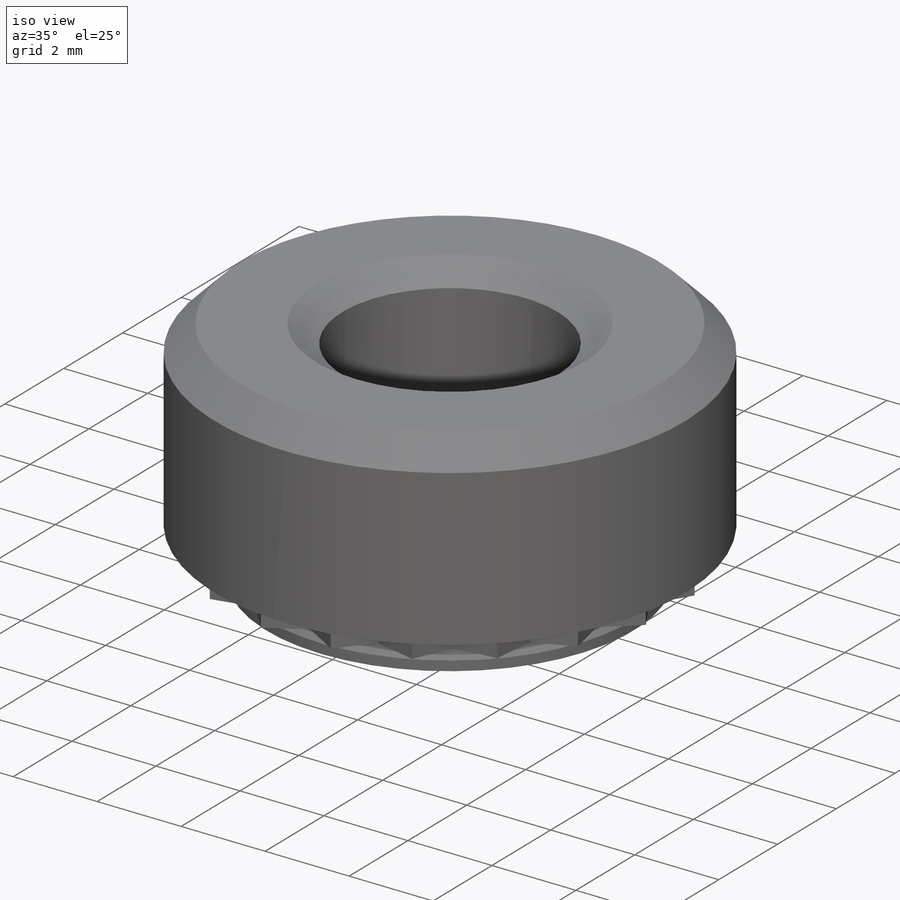
[diagram: iso view]
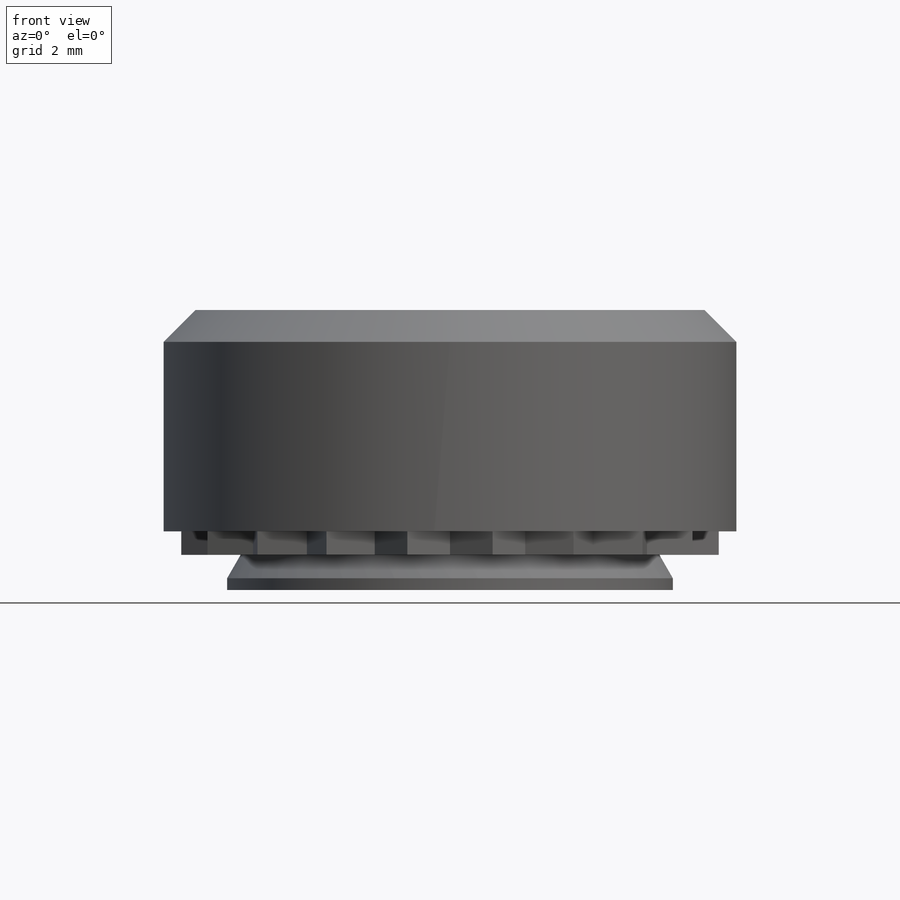
[diagram: front view]
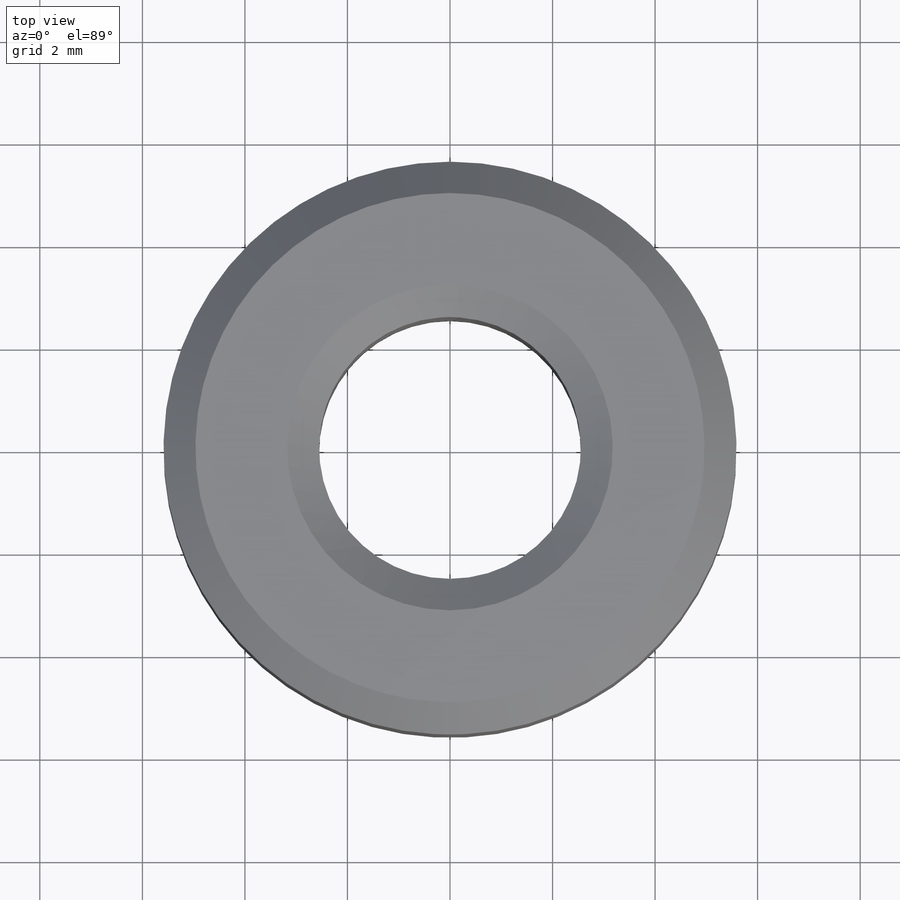
[diagram: top view]
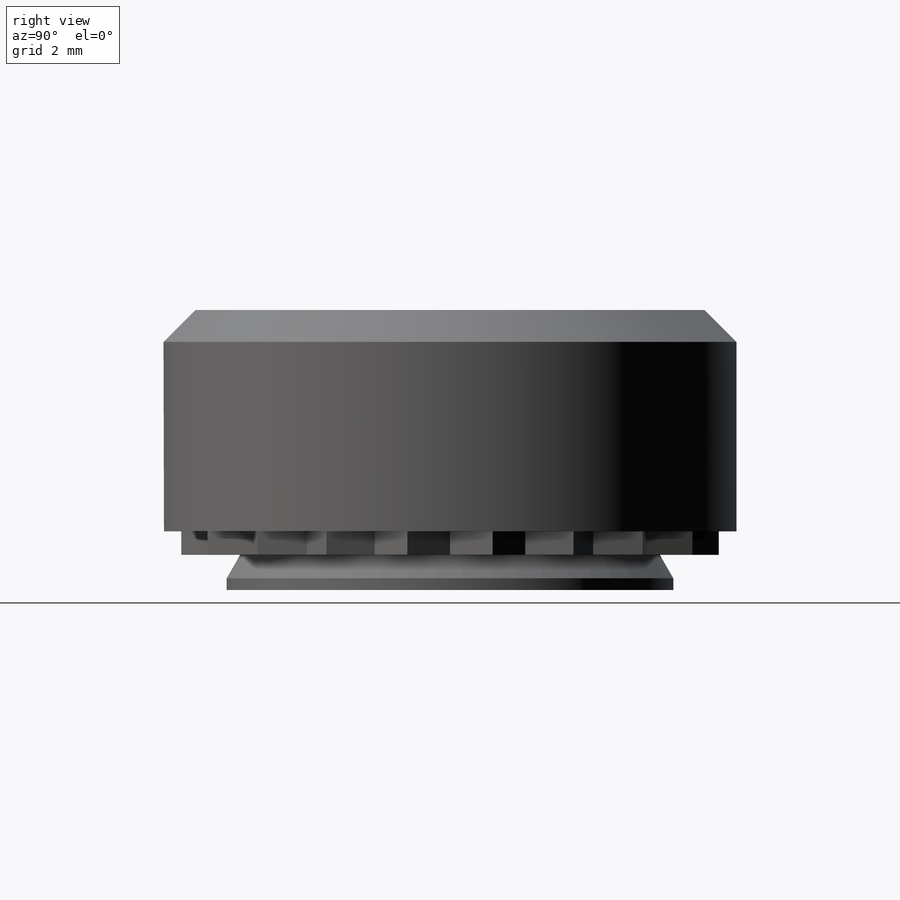
[diagram: right view]
SOLIDWORKS PART (.sldprt)
format: sldprt  version: not decoded by parser v0  size: 768,512 bytes
history: native  units: mm
features: cut_revolve x24, plane x4, sketch x4, revolve x2, thread x2, chamfer x2, material x1, pattern_linear x1, extrude x1, pattern_circular x1 (+9 scaffold rows collapsed)
feature tree (51):
  scaffold x9  (default folders/planes/origin — collapsed)
  material  "Material <not specified>"
  plane  "Plane1"
  plane  "Plane2"
  plane  "Plane3"
  sketch  "BodySke"  dims[c1.E_dia=7.112mm c1.C_dia=4.7498mm c1.A_ht=0.762mm c1.T_ht=1.778mm c1.Thread_min=2.7051mm c1.Clinch_dia=10.6172mm c1.Clinch_ht=~0.54864mm c1.C_len=0.1524mm c1.D3=~1.38811mm c1.Angle=~51.551076deg c1.Clinching_ht=0.3048mm c1.D2=~1.66751mm c2.D2=~51.551076deg c2.D1=60.0deg c2.Advance=~0.79248mm]
  revolve  "Body"  [1 undecoded]
  thread  "ThreadCosmetic"  [2 undecoded]
  cut_revolve  "EndChamfer"  [1 undecoded]
  sketch  "EndChamferSke"  dims[c1.Thread_nominal=3.5052mm c1.D1=0.254mm c1.D2=0.762mm c2.D2=34.99deg c2.Thread_min=2.7051mm c2.Inset=~0.00254mm c2.D1=360.0deg c2.Thread_nominal=3.5052mm c3.D1=360.0deg]
  chamfer  "Chamfer"  Distance=0.40005mm Angle=45deg Width=0.40005mm
  sketch  "CliRinSegSke"  dims[Crimp_od=10.6172mm D2=~6.486144mm D3=6.0452mm D4=~5.803392mm D5=10.6172mm D1=~0.212344mm Angle=18.0deg]
  plane  "Plane4"  Offset=0.54864mm
  cut_revolve  "CurrentVersion"  [1 undecoded]
  cut_revolve  "EditFunction"  [1 undecoded]
  cut_revolve  "Type"  [1 undecoded]
  cut_revolve  "SubType"  [1 undecoded]
  cut_revolve  "Application"  [1 undecoded]
  cut_revolve  "CurrentVersion"  [1 undecoded]
  cut_revolve  "EditFunction"  [1 undecoded]
  cut_revolve  "Type"  [1 undecoded]
  cut_revolve  "SubType"  [1 undecoded]
  thread  "CimPEMSettings6.016572"  [2 undecoded]
  cut_revolve  "THREAD_DISPLAY"  [1 undecoded]
  cut_revolve  "STANDARD"  [1 undecoded]
  cut_revolve  "TYPE"  [1 undecoded]
  cut_revolve  "SIZE"  [1 undecoded]
  cut_revolve  "COSMETIC_THREAD"  [1 undecoded]
  cut_revolve  "AUTO_SAVE"  [1 undecoded]
  cut_revolve  "INSERT_MODE"  [1 undecoded]
  chamfer  "CimPEMSettings6.0"  [1 undecoded]
  cut_revolve  "THREAD_DISPLAY"  [1 undecoded]
  cut_revolve  "STANDARD"  [1 undecoded]
  cut_revolve  "TYPE"  [1 undecoded]
  cut_revolve  "SIZE"  [1 undecoded]
  cut_revolve  "COSMETIC_THREAD"  [1 undecoded]
  cut_revolve  "AUTO_SAVE"  [1 undecoded]
  cut_revolve  "INSERT_MODE"  [1 undecoded]
  sketch  "ThdSchSke"  dims[D1=~1.157094mm Vee_angle=70.0deg Thread_nominal=3.5052mm Thread_min=2.7051mm]
  revolve  "ThreadSchematic"  Angle=360deg
  pattern_linear  "ThdSchPat"  Count1=5 Count2=1 Spacing1=0.634365mm Spacing2=50mm Num_threads=5 Advance=0.634365mm
  extrude  "ClinchingRingSegment"  Depth=0.3048mm Clinching_ht=0.3048mm
  pattern_circular  "ClinchingRing"  Count=20 Angle=18deg
decode coverage: 9 of 37 modeling features carry decoded parameters
note: ~ marks probable driven/reference dimensions
note: 30 parameter values undecoded
summary: no parameter record found for 28 features
note: suppression state not decoded; provenance and decode notes live in map.json
